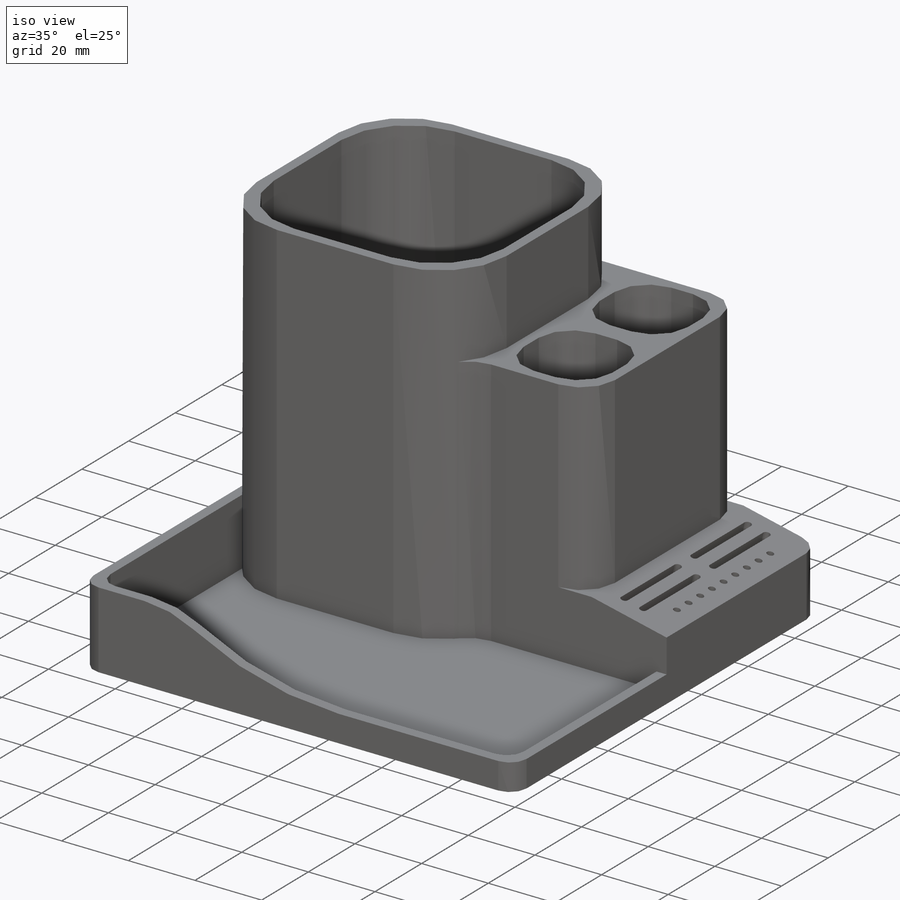
[diagram: iso view]
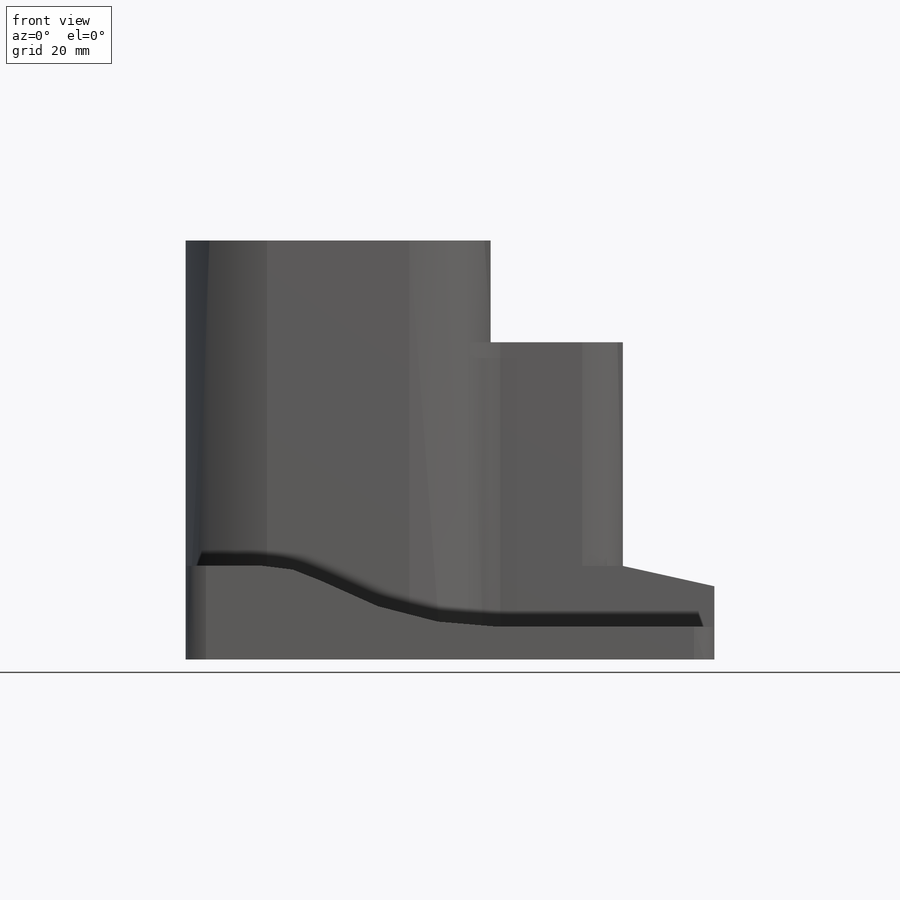
[diagram: front view]
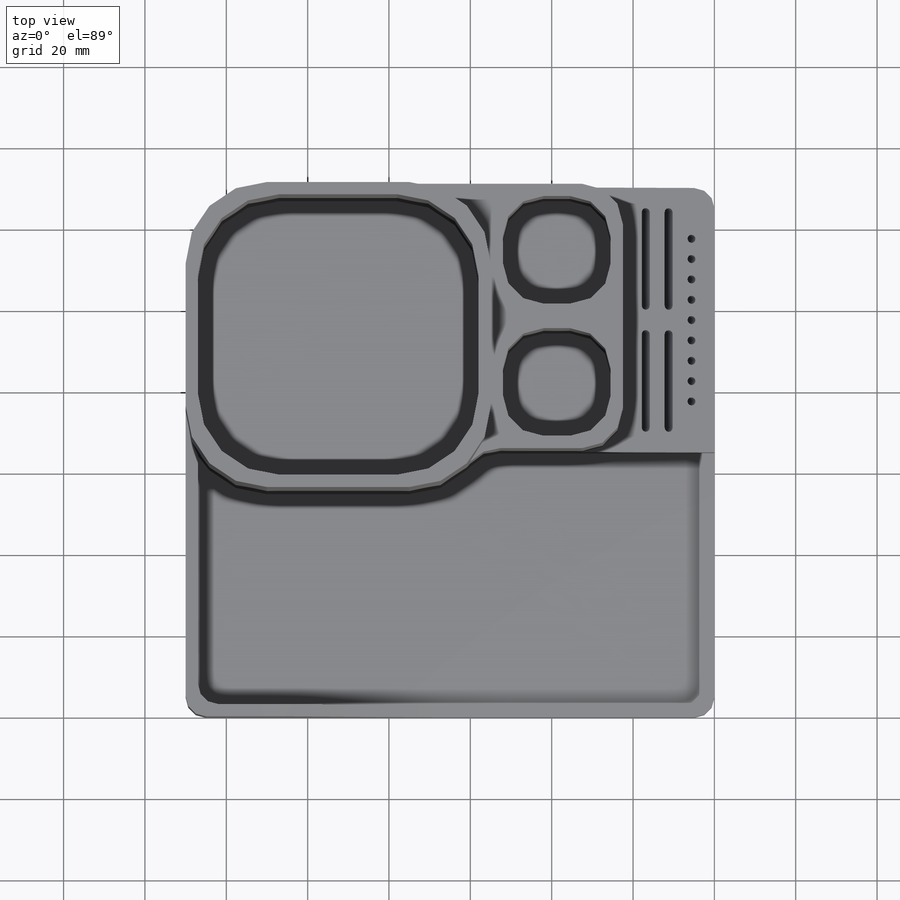
[diagram: top view]
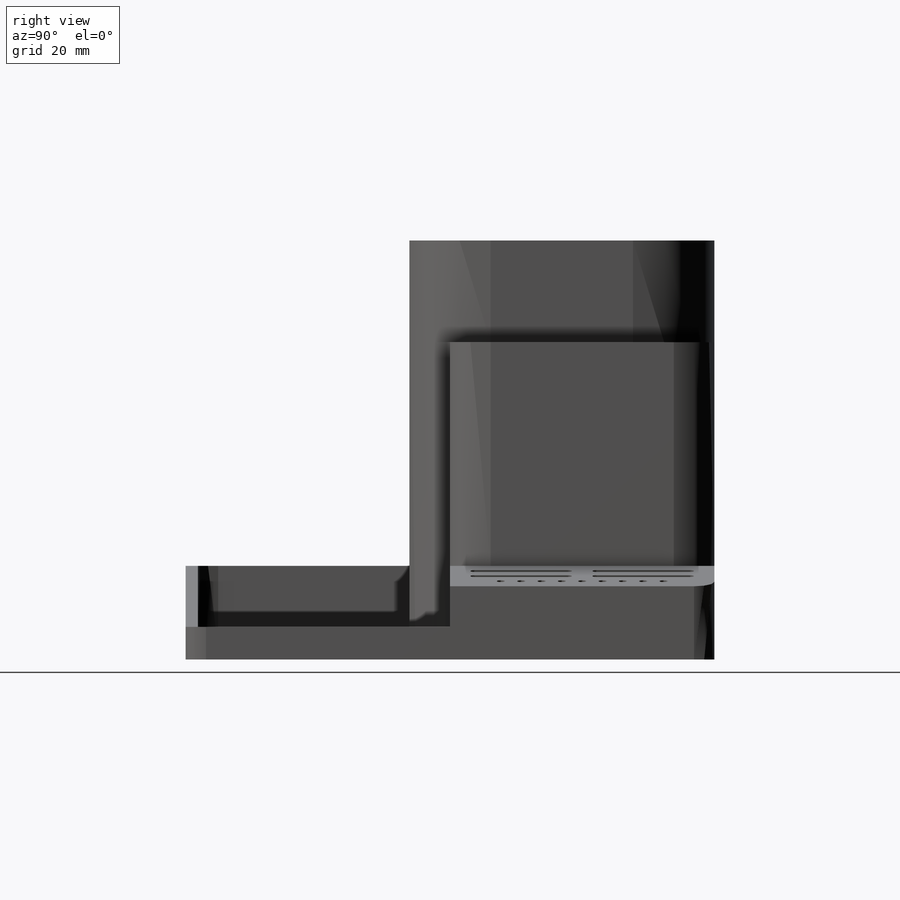
[diagram: right view]
SOLIDWORKS PART (.sldprt)
format: sldprt  version: not decoded by parser v0  size: 631,808 bytes
history: native  units: mm
features: sketch x10, fillet x10, extrude x5, cut_extrude x5, plane x3, material x1 (+9 scaffold rows collapsed)
feature tree (43):
  scaffold x9  (default folders/planes/origin — collapsed)
  material  "Материал <не указан>"
  plane  "Спереди"
  plane  "Сверху"
  plane  "Справа"
  sketch  "Эскиз1"  dims[D1=130.0mm D2=130.0mm]
  extrude  "Бобышка-Вытянуть1"  Depth=3mm
  sketch  "Эскиз2"  dims[D1=3.0mm D2=75.0mm]
  extrude  "Бобышка-Вытянуть2"  Depth=100mm
  sketch  "Эскиз3"  dims[D1=32.5mm D2=32.5mm D3=32.5mm D4=3.0mm D5=3.0mm D6=3.0mm D7=3.0mm D8=6.0mm]
  extrude  "Бобышка-Вытянуть3"  Depth=75mm
  fillet  "Скругление2"  Radius=20mm
  fillet  "Скругление3"  Radius=20mm
  sketch  "Эскиз4"  dims[D1=3.0mm D2=3.0mm D3=3.0mm D4=3.0mm]
  fillet  "Скругление6"  Radius=10mm
  extrude  "Бобышка-Вытянуть7"  Depth=20mm
  sketch  "Эскиз14"
  extrude  "Бобышка-Вытянуть8"  Depth=20mm
  sketch  "Эскиз15"  dims[D1=8.0mm]
  cut_extrude  "Вырез-Вытянуть6"  Depth=3mm
  fillet  "Скругление7"  Radius=90mm
  fillet  "Скругление8"  Radius=30mm
  sketch  "Эскиз17"
  cut_extrude  "Вырез-Вытянуть8"  Depth=3mm
  fillet  "Скругление9"  Radius=5mm
  fillet  "Скругление11"  Radius=20mm
  fillet  "Скругление12"  Radius=20mm
  fillet  "Скругление13"  Radius=10mm
  sketch  "Эскиз18"  dims[D1=5.0mm]
  cut_extrude  "Вырез-Вытянуть9"  Depth=300mm
  sketch  "Эскиз19"  dims[c1.D5=~1.325529mm c1.D1=25.0mm c1.D2=2.0mm c1.D3=5.0mm c1.D6=~0.404953mm c2.D6=90.0deg c3.D6=2.0mm c3.D4=2.0 c3.D5=5.0 c3.D7=2.0 c3.D8=5.0]
  cut_extrude  "Вырез-Вытянуть12"  Depth=18mm
  cut_extrude  "Вырез-Вытянуть13"  [1 undecoded]
  sketch  "Эскиз19<4>"  dims[D1=20.0mm]
  fillet  "Скругление15"  Radius=1mm
decode coverage: 27 of 30 modeling features carry decoded parameters
note: ~ marks probable driven/reference dimensions
note: 1 parameter value undecoded
note: suppression state not decoded; provenance and decode notes live in map.json
